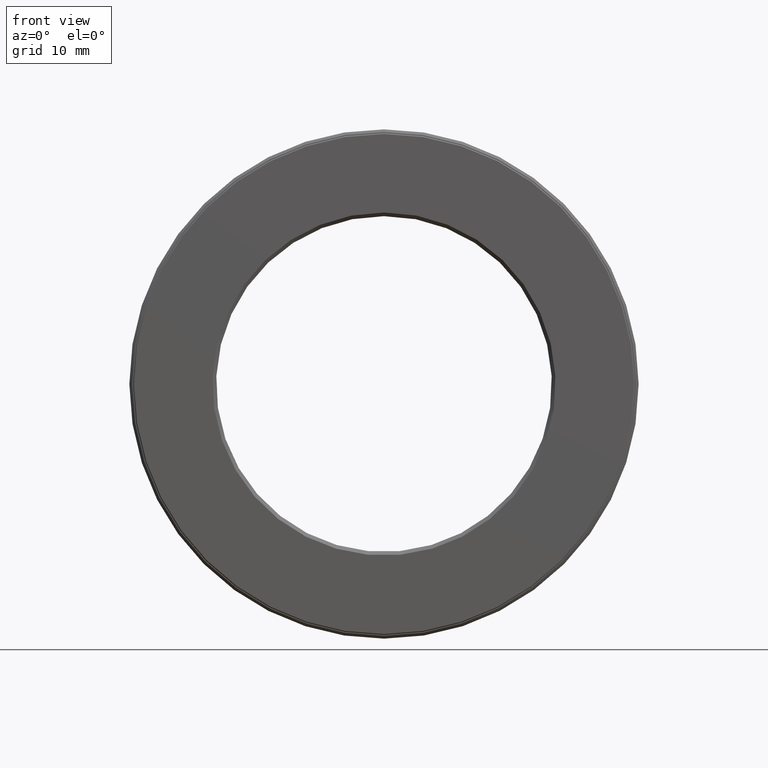
[diagram: clean part render]
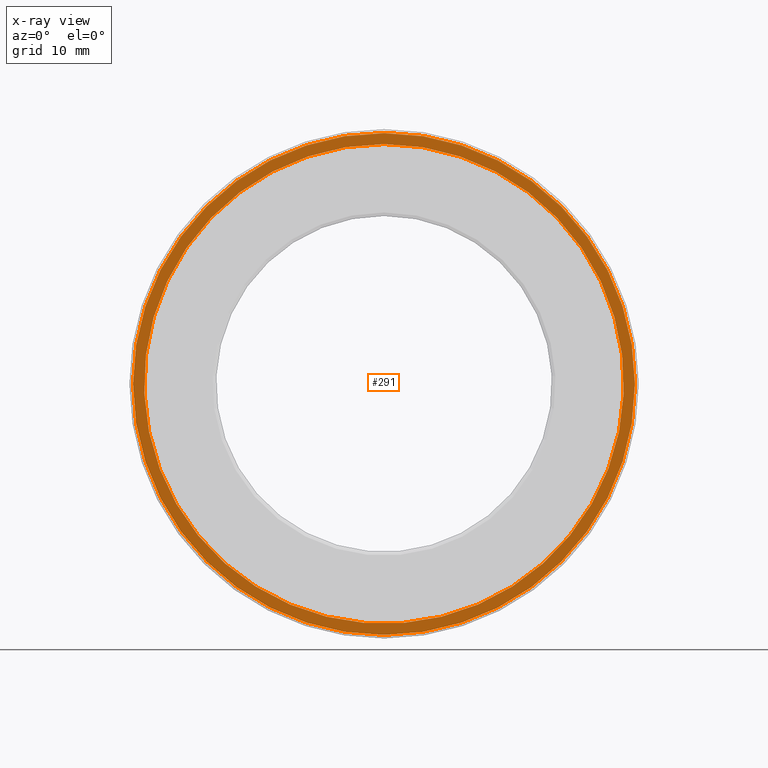
[diagram: x-ray — body ghosted, one internal face saturated and labeled with its STEP entity id]
A machine part, front view, then the same camera in x-ray: the body is ghosted and one INTERNAL B-rep face — a face not visible from any outside direction — is saturated and labeled: STEP entity #291.
In plain terms, the highlighted planar face has unit normal (-0, 1, 0).
Its self-contained STEP definition (entity closure, byte-faithful):
#20 = EDGE_LOOP ( 'NONE', ( #132 ) ) ;
#45 = AXIS2_PLACEMENT_3D ( 'NONE', #227, #515, #425 ) ;
#88 = AXIS2_PLACEMENT_3D ( 'NONE', #166, #219, #413 ) ;
#118 = CARTESIAN_POINT ( 'NONE',  ( 0.0000000000000000000, 0.6524999999999999700, 1.294999999999999900 ) ) ;
#132 = ORIENTED_EDGE ( 'NONE', *, *, #200, .F. ) ;
#166 = CARTESIAN_POINT ( 'NONE',  ( 0.0000000000000000000, 0.6524999999999999700, 0.0000000000000000000 ) ) ;
#176 = ORIENTED_EDGE ( 'NONE', *, *, #482, .T. ) ;
#200 = EDGE_CURVE ( 'NONE', #226, #226, #536, .T. ) ;
#215 = EDGE_LOOP ( 'NONE', ( #176 ) ) ;
#219 = DIRECTION ( 'NONE',  ( -0.0000000000000000000, 1.000000000000000000, -0.0000000000000000000 ) ) ;
#226 = VERTEX_POINT ( 'NONE', #258 ) ;
#227 = CARTESIAN_POINT ( 'NONE',  ( 0.0000000000000000000, 0.6524999999999999700, 0.0000000000000000000 ) ) ;
#250 = VERTEX_POINT ( 'NONE', #118 ) ;
#258 = CARTESIAN_POINT ( 'NONE',  ( 0.0000000000000000000, 0.6524999999999999700, 1.355000000000000000 ) ) ;
#286 = DIRECTION ( 'NONE',  ( -0.0000000000000000000, 1.000000000000000000, -0.0000000000000000000 ) ) ;
#288 = CARTESIAN_POINT ( 'NONE',  ( 0.0000000000000000000, 0.6524999999999999700, 0.0000000000000000000 ) ) ;
#291 = ADVANCED_FACE ( 'NONE', ( #552, #501 ), #562, .F. ) ;
#324 = AXIS2_PLACEMENT_3D ( 'NONE', #288, #286, #577 ) ;
#349 = CIRCLE ( 'NONE', #324, 1.294999999999999900 ) ;
#413 = DIRECTION ( 'NONE',  ( 0.0000000000000000000, 0.0000000000000000000, 1.000000000000000000 ) ) ;
#425 = DIRECTION ( 'NONE',  ( 0.0000000000000000000, 0.0000000000000000000, 1.000000000000000000 ) ) ;
#482 = EDGE_CURVE ( 'NONE', #250, #250, #349, .T. ) ;
#501 = FACE_BOUND ( 'NONE', #215, .T. ) ;
#515 = DIRECTION ( 'NONE',  ( -0.0000000000000000000, 1.000000000000000000, 0.0000000000000000000 ) ) ;
#536 = CIRCLE ( 'NONE', #88, 1.355000000000000000 ) ;
#552 = FACE_OUTER_BOUND ( 'NONE', #20, .T. ) ;
#562 = PLANE ( 'NONE',  #45 ) ;
#577 = DIRECTION ( 'NONE',  ( 0.0000000000000000000, 0.0000000000000000000, 1.000000000000000000 ) ) ;